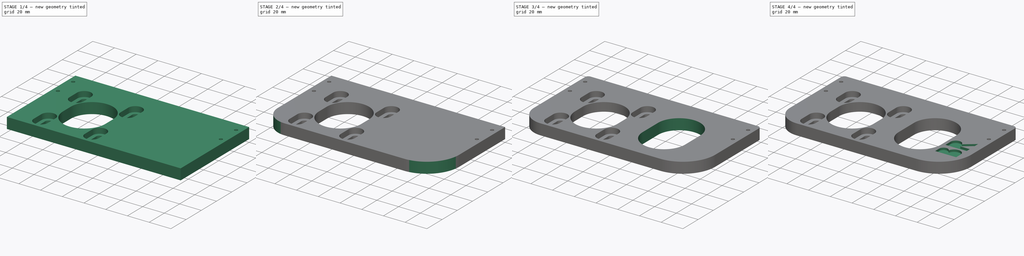
[diagram: build sequence overview — one tinted view per stage of 4, left to right]
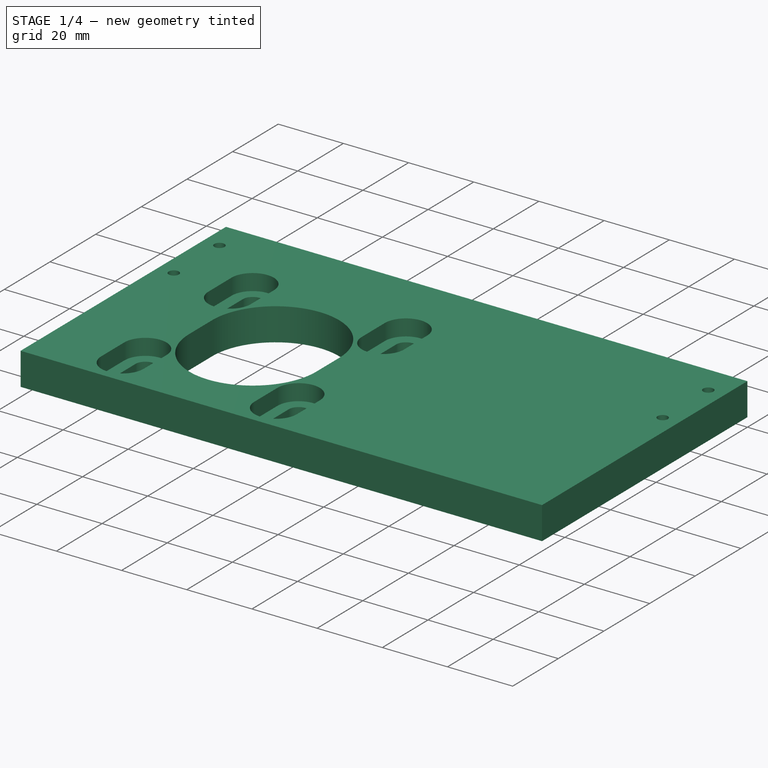
[diagram: stage 1 of 4 — iso view after this stage's code; geometry added in this stage tinted green]
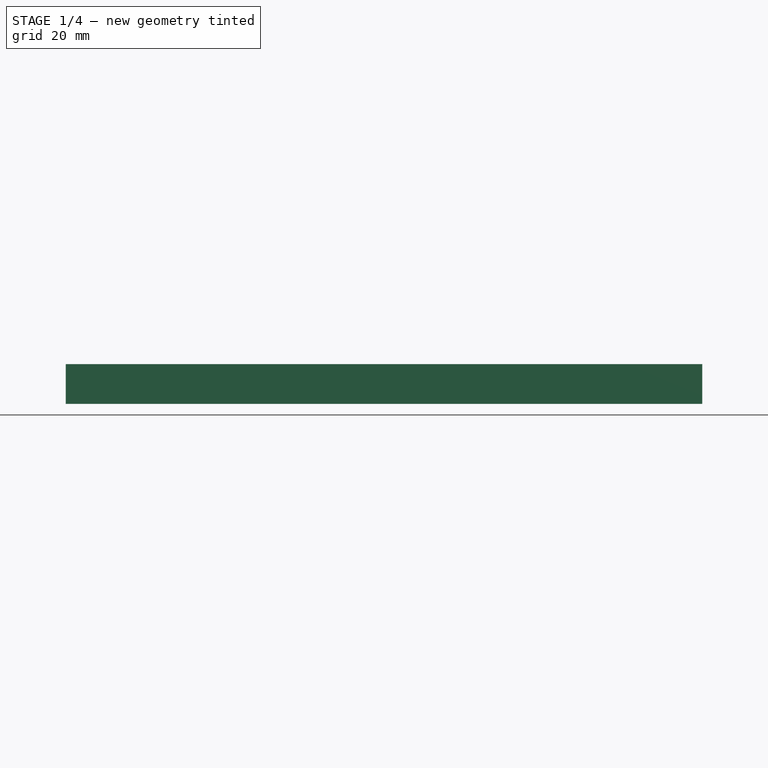
[diagram: stage 1 of 4 — front view after this stage's code; geometry added in this stage tinted green]
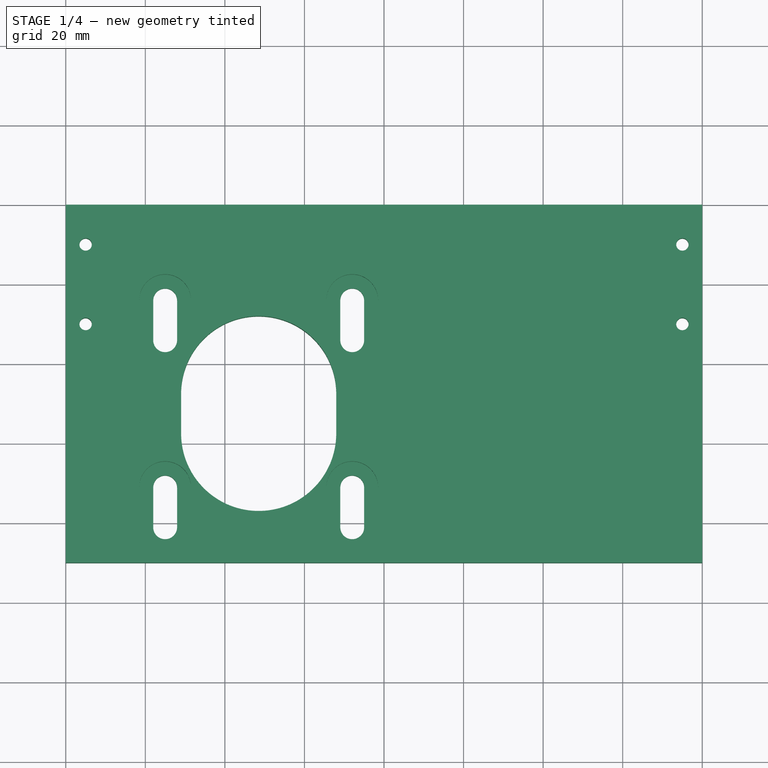
[diagram: stage 1 of 4 — top view after this stage's code; geometry added in this stage tinted green]
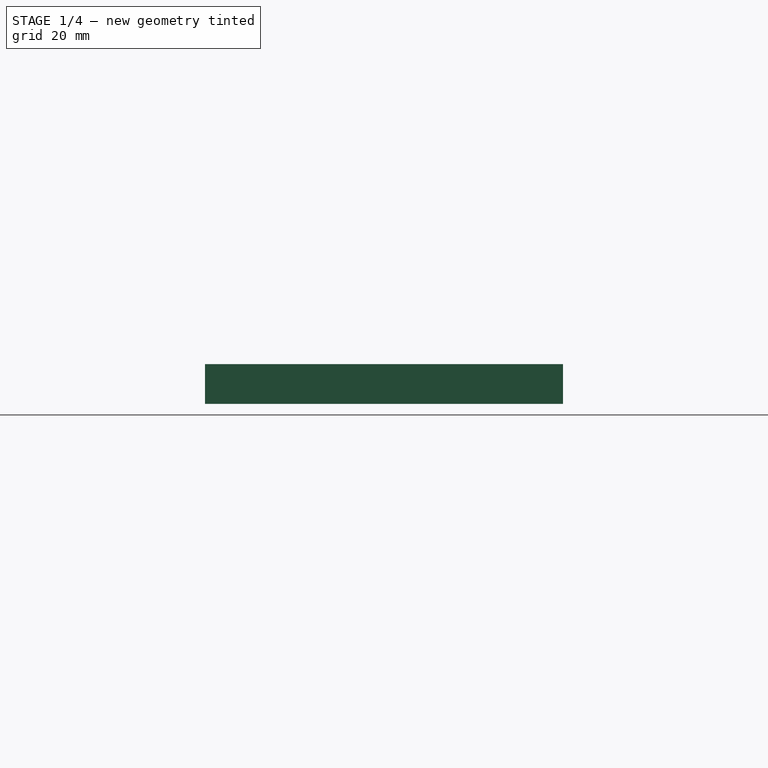
[diagram: stage 1 of 4 — right view after this stage's code; geometry added in this stage tinted green]
FCSTD DOCUMENT  (FreeCAD 0.19R24276 (Git))
Label: Stepper_holder_second_floor_v3
License: All rights reserved
LicenseURL: http://en.wikipedia.org/wiki/All_rights_reserved
objects: Sketcher::SketchObject×5, PartDesign::Pocket×4, PartDesign::Fillet×4, PartDesign::Pad×1, PartDesign::Body×1
note: 24 computed .brp shape members not serialized (recipe doc carries the construction recipe); baked Part::Feature solids carry a one-line shape summary decoded from their .brp

FEATURE [Sketcher::SketchObject] Sketch  label="Sketch_d39"
  FullyConstrained = false
  MapMode = 5
  Support = -> [XY_Plane]
  sketch-geometry (101):
    g0: LineSegment StartX=0 StartY=0 StartZ=0 EndX=200 EndY=0 EndZ=0
    g1: LineSegment StartX=200 StartY=0 StartZ=0 EndX=200 EndY=130 EndZ=0
    g2: LineSegment StartX=200 StartY=130 StartZ=0 EndX=0 EndY=130 EndZ=0
    g3: LineSegment StartX=0 StartY=130 StartZ=0 EndX=0 EndY=0 EndZ=0
    g4: Circle CenterX=100 CenterY=65 CenterZ=0 NormalX=0 NormalY=0 NormalZ=1 AngleXU=0 Radius=35
    g5: Circle CenterX=45 CenterY=115 CenterZ=0 NormalX=0 NormalY=0 NormalZ=1 AngleXU=0 Radius=1.5625
    g6: Circle CenterX=45 CenterY=15 CenterZ=0 NormalX=0 NormalY=0 NormalZ=1 AngleXU=0 Radius=1.5625
    g7: Circle CenterX=155 CenterY=115 CenterZ=0 NormalX=0 NormalY=0 NormalZ=1 AngleXU=0 Radius=1.5625
    g8: Circle CenterX=155 CenterY=15 CenterZ=0 NormalX=0 NormalY=0 NormalZ=1 AngleXU=0 Radius=1.5625
    g9: LineSegment StartX=45 StartY=15 StartZ=0 EndX=45 EndY=115 EndZ=0
    g10: LineSegment StartX=45 StartY=15 StartZ=0 EndX=155 EndY=15 EndZ=0
    g11: LineSegment StartX=155 StartY=115 StartZ=0 EndX=155 EndY=15 EndZ=0
    g12: LineSegment StartX=45 StartY=115 StartZ=0 EndX=155 EndY=115 EndZ=0
    g13: Circle CenterX=185 CenterY=30 CenterZ=0 NormalX=0 NormalY=0 NormalZ=1 AngleXU=0 Radius=1.5625
    g14: LineSegment StartX=185 StartY=105 StartZ=0 EndX=185 EndY=30 EndZ=0
    g15: Circle CenterX=99.9966 CenterY=64.9752 CenterZ=0 NormalX=0 NormalY=0 NormalZ=1 AngleXU=0 Radius=50
    g16: LineSegment StartX=100 StartY=65 StartZ=0 EndX=135.339 EndY=100.344 EndZ=0
    g17: LineSegment StartX=100 StartY=65 StartZ=0 EndX=64.6329 EndY=29.6281 EndZ=0
    g18: LineSegment StartX=100 StartY=65 StartZ=0 EndX=135.368 EndY=29.6364 EndZ=0
    g19: Circle CenterX=135.339 CenterY=100.344 CenterZ=0 NormalX=0 NormalY=0 NormalZ=1 AngleXU=0 Radius=1.5625
    g20: Circle CenterX=64.6329 CenterY=29.6281 CenterZ=0 NormalX=0 NormalY=0 NormalZ=1 AngleXU=0 Radius=1.5625
    g21: LineSegment StartX=100 StartY=65 StartZ=0 EndX=64.653 EndY=100.342 EndZ=0
    g22: Circle CenterX=64.6446 CenterY=100.355 CenterZ=0 NormalX=0 NormalY=0 NormalZ=1 AngleXU=0 Radius=1.5625
    g23: Circle CenterX=135.368 CenterY=29.6364 CenterZ=0 NormalX=0 NormalY=0 NormalZ=1 AngleXU=0 Radius=1.5625
    g24: LineSegment StartX=175 StartY=121.301 StartZ=0 EndX=175 EndY=20 EndZ=0
    g25: Circle CenterX=175 CenterY=20 CenterZ=0 NormalX=0 NormalY=0 NormalZ=1 AngleXU=0 Radius=1.5625
    g26: Circle CenterX=175 CenterY=40 CenterZ=0 NormalX=0 NormalY=0 NormalZ=1 AngleXU=0 Radius=1.5625
    g27: Circle CenterX=185 CenterY=50 CenterZ=0 NormalX=0 NormalY=0 NormalZ=1 AngleXU=0 Radius=1.5625
    g28: LineSegment StartX=100 StartY=65 StartZ=0 EndX=228.555 EndY=65 EndZ=0
    g29: Circle CenterX=175 CenterY=90 CenterZ=0 NormalX=0 NormalY=0 NormalZ=1 AngleXU=0 Radius=1.5625
    g30: Circle CenterX=175 CenterY=110 CenterZ=0 NormalX=0 NormalY=0 NormalZ=1 AngleXU=0 Radius=1.5625
    g31: Circle CenterX=185 CenterY=80 CenterZ=0 NormalX=0 NormalY=0 NormalZ=1 AngleXU=0 Radius=1.5625
    g32: Circle CenterX=185 CenterY=100 CenterZ=0 NormalX=0 NormalY=0 NormalZ=1 AngleXU=0 Radius=1.5625
    g33: LineSegment StartX=100 StartY=65 StartZ=0 EndX=100 EndY=146.994 EndZ=0
    g34: Circle CenterX=15 CenterY=30 CenterZ=0 NormalX=0 NormalY=0 NormalZ=1 AngleXU=0 Radius=1.5625
    g35: LineSegment StartX=15 StartY=105 StartZ=0 EndX=15 EndY=30 EndZ=0
    g36: LineSegment StartX=25 StartY=121.301 StartZ=0 EndX=25 EndY=20 EndZ=0
    g37: Circle CenterX=25 CenterY=20 CenterZ=0 NormalX=0 NormalY=0 NormalZ=1 AngleXU=0 Radius=1.5625
    g38: Circle CenterX=25 CenterY=40 CenterZ=0 NormalX=0 NormalY=0 NormalZ=1 AngleXU=0 Radius=1.5625
    g39: Circle CenterX=15 CenterY=50 CenterZ=0 NormalX=0 NormalY=0 NormalZ=1 AngleXU=0 Radius=1.5625
    g40: Circle CenterX=25 CenterY=90 CenterZ=0 NormalX=0 NormalY=0 NormalZ=1 AngleXU=0 Radius=1.5625
    g41: Circle CenterX=25 CenterY=110 CenterZ=0 NormalX=0 NormalY=0 NormalZ=1 AngleXU=0 Radius=1.5625
    g42: Circle CenterX=15 CenterY=80 CenterZ=0 NormalX=0 NormalY=0 NormalZ=1 AngleXU=0 Radius=1.5625
    g43: Circle CenterX=15 CenterY=100 CenterZ=0 NormalX=0 NormalY=0 NormalZ=1 AngleXU=0 Radius=1.5625
    g44: LineSegment StartX=0 StartY=0 StartZ=0 EndX=200 EndY=0 EndZ=0
    g45: LineSegment StartX=200 StartY=0 StartZ=0 EndX=200 EndY=-60 EndZ=0
    g46: LineSegment StartX=200 StartY=-60 StartZ=0 EndX=0 EndY=-60 EndZ=0
    g47: LineSegment StartX=0 StartY=-60 StartZ=0 EndX=0 EndY=0 EndZ=0
    g48: LineSegment StartX=175 StartY=20 StartZ=0 EndX=175 EndY=-60 EndZ=0
    g49: Circle CenterX=175 CenterY=-10 CenterZ=0 NormalX=0 NormalY=0 NormalZ=1 AngleXU=0 Radius=1.5625
    g50: Circle CenterX=175 CenterY=-30 CenterZ=0 NormalX=0 NormalY=0 NormalZ=1 AngleXU=0 Radius=1.5625
    g51: LineSegment StartX=185 StartY=30 StartZ=0 EndX=185 EndY=-52.453 EndZ=0
    g52: Circle CenterX=185 CenterY=-20 CenterZ=0 NormalX=0 NormalY=0 NormalZ=1 AngleXU=0 Radius=1.5625
    g53: Circle CenterX=185 CenterY=-40 CenterZ=0 NormalX=0 NormalY=0 NormalZ=1 AngleXU=0 Radius=1.5625
    g54: Circle CenterX=25 CenterY=-10 CenterZ=0 NormalX=0 NormalY=0 NormalZ=1 AngleXU=0 Radius=1.5625
    g55: Circle CenterX=25 CenterY=-30 CenterZ=0 NormalX=0 NormalY=0 NormalZ=1 AngleXU=0 Radius=1.5625
    g56: Circle CenterX=15 CenterY=-20 CenterZ=0 NormalX=0 NormalY=0 NormalZ=1 AngleXU=0 Radius=1.5625
    g57: Circle CenterX=15 CenterY=-40 CenterZ=0 NormalX=0 NormalY=0 NormalZ=1 AngleXU=0 Radius=1.5625
    g58: LineSegment StartX=44.9887 StartY=-23.9887 StartZ=0 EndX=44.9887 EndY=-71.0113 EndZ=0
    g59: LineSegment StartX=44.9887 StartY=-71.0113 StartZ=0 EndX=92.0113 EndY=-71.0113 EndZ=0
    g60: LineSegment StartX=92.0113 StartY=-71.0113 StartZ=0 EndX=92.0113 EndY=-23.9887 EndZ=0
    g61: LineSegment StartX=92.0113 StartY=-23.9887 StartZ=0 EndX=44.9887 EndY=-23.9887 EndZ=0
    g62: Circle CenterX=68.5 CenterY=-47.5 CenterZ=0 NormalX=0 NormalY=0 NormalZ=1 AngleXU=0 Radius=33.25
    g63: Circle CenterX=92.0113 CenterY=-71.0113 CenterZ=0 NormalX=0 NormalY=0 NormalZ=1 AngleXU=0 Radius=3
    g64: LineSegment StartX=160 StartY=0 StartZ=0 EndX=160 EndY=130 EndZ=0
    g65: LineSegment StartX=0 StartY=0 StartZ=0 EndX=200 EndY=0 EndZ=0
    g66: LineSegment StartX=0 StartY=0 StartZ=0 EndX=200 EndY=0 EndZ=0
    g67: LineSegment StartX=200 StartY=0 StartZ=0 EndX=200 EndY=-90 EndZ=0
    g68: LineSegment StartX=180 StartY=-90 StartZ=0 EndX=20 EndY=-90 EndZ=0
    g69: LineSegment StartX=0 StartY=-90 StartZ=0 EndX=0 EndY=0 EndZ=0
    g70: LineSegment StartX=40 StartY=48.3521 StartZ=0 EndX=40 EndY=-60 EndZ=0
    g71: ArcOfCircle CenterX=92.0113 CenterY=-23.9887 CenterZ=0 NormalX=0 NormalY=0 NormalZ=1 AngleXU=0 Radius=3 StartAngle=2e-16 EndAngle=3.14159
    g72: ArcOfCircle CenterX=92.0113 CenterY=-33.9887 CenterZ=0 NormalX=0 NormalY=0 NormalZ=1 AngleXU=0 Radius=3 StartAngle=3.14159 EndAngle=6.28319
    g73: LineSegment StartX=89.0113 StartY=-23.9887 StartZ=0 EndX=89.0113 EndY=-33.9887 EndZ=0
    g74: LineSegment StartX=95.0113 StartY=-23.9887 StartZ=0 EndX=95.0113 EndY=-33.9887 EndZ=0
    g75: ArcOfCircle CenterX=68.5 CenterY=-47.5 CenterZ=0 NormalX=0 NormalY=0 NormalZ=1 AngleXU=0 Radius=19.5 StartAngle=3e-16 EndAngle=3.14159
    g76: ArcOfCircle CenterX=68.5 CenterY=-57.5 CenterZ=0 NormalX=0 NormalY=0 NormalZ=1 AngleXU=0 Radius=19.5 StartAngle=3.14159 EndAngle=6.28319
    g77: LineSegment StartX=49 StartY=-47.5 StartZ=0 EndX=49 EndY=-57.5 EndZ=0
    g78: LineSegment StartX=88 StartY=-47.5 StartZ=0 EndX=88 EndY=-57.5 EndZ=0
    g79: ArcOfCircle CenterX=92.0113 CenterY=-71.0113 CenterZ=0 NormalX=0 NormalY=0 NormalZ=1 AngleXU=0 Radius=3 StartAngle=-9e-16 EndAngle=3.14159
    g80: ArcOfCircle CenterX=92.0113 CenterY=-81.0113 CenterZ=0 NormalX=0 NormalY=0 NormalZ=1 AngleXU=0 Radius=3 StartAngle=3.14159 EndAngle=6.28319
    g81: LineSegment StartX=89.0113 StartY=-71.0113 StartZ=0 EndX=89.0113 EndY=-81.0113 EndZ=0
    g82: LineSegment StartX=95.0113 StartY=-71.0113 StartZ=0 EndX=95.0113 EndY=-81.0113 EndZ=0
    g83: ArcOfCircle CenterX=44.9887 CenterY=-71.0113 CenterZ=0 NormalX=0 NormalY=0 NormalZ=1 AngleXU=0 Radius=3 StartAngle=-9e-16 EndAngle=3.14159
    g84: ArcOfCircle CenterX=44.9887 CenterY=-81.0113 CenterZ=0 NormalX=0 NormalY=0 NormalZ=1 AngleXU=0 Radius=3 StartAngle=3.14159 EndAngle=6.28319
    g85: LineSegment StartX=41.9887 StartY=-71.0113 StartZ=0 EndX=41.9887 EndY=-81.0113 EndZ=0
    g86: LineSegment StartX=47.9887 StartY=-71.0113 StartZ=0 EndX=47.9887 EndY=-81.0113 EndZ=0
    g87: ArcOfCircle CenterX=44.9887 CenterY=-23.9887 CenterZ=0 NormalX=0 NormalY=0 NormalZ=1 AngleXU=0 Radius=3 StartAngle=0 EndAngle=3.14159
    g88: ArcOfCircle CenterX=44.9887 CenterY=-33.9887 CenterZ=0 NormalX=0 NormalY=0 NormalZ=1 AngleXU=0 Radius=3 StartAngle=3.14159 EndAngle=6.28319
    g89: LineSegment StartX=41.9887 StartY=-23.9887 StartZ=0 EndX=41.9887 EndY=-33.9887 EndZ=0
    g90: LineSegment StartX=47.9887 StartY=-23.9887 StartZ=0 EndX=47.9887 EndY=-33.9887 EndZ=0
    g91: LineSegment StartX=20 StartY=0 StartZ=0 EndX=20 EndY=-90 EndZ=0
    g92: LineSegment StartX=180 StartY=0 StartZ=0 EndX=180 EndY=-90 EndZ=0
    g93: LineSegment StartX=20 StartY=0 StartZ=0 EndX=180 EndY=0 EndZ=0
    g94: LineSegment StartX=180 StartY=-90 StartZ=0 EndX=200 EndY=-90 EndZ=0
    g95: LineSegment StartX=20 StartY=-90 StartZ=0 EndX=0 EndY=-90 EndZ=0
    g96: LineSegment StartX=97 StartY=-19 StartZ=0 EndX=40 EndY=-19 EndZ=0
    g97: LineSegment StartX=40 StartY=-19 StartZ=0 EndX=40 EndY=-76 EndZ=0
    g98: LineSegment StartX=40 StartY=-76 StartZ=0 EndX=97 EndY=-76 EndZ=0
    g99: LineSegment StartX=97 StartY=-76 StartZ=0 EndX=97 EndY=-19 EndZ=0
    g100: Circle CenterX=68.5 CenterY=-47.5 CenterZ=0 NormalX=0 NormalY=0 NormalZ=1 AngleXU=0 Radius=40.3051
  constraints (230):
    c: Coincident(g0,g1)
    c: Coincident(g1,g2)
    c: Coincident(g2,g3)
    c: Coincident(g3,g0)
    c: Horizontal(g0)
    c: Horizontal(g2)
    c: Vertical(g1)
    c: Vertical(g3)
    c: Coincident(g0,g-1)
    c: DistanceY(g1,g1) = 130
    c: DistanceX(g0,g0) = 200
    c: Symmetric(g2,g0,g4)
    c: Diameter(g4) = 70
    c: DistanceX(g0,g6) = 45
    c: Coincident(g9,g6)
    c: Coincident(g9,g5)
    c: Vertical(g9)
    c: Coincident(g10,g6)
    c: Coincident(g10,g8)
    c: Horizontal(g10)
    c: Coincident(g11,g7)
    c: Coincident(g11,g8)
    c: Vertical(g11)
    c: Coincident(g12,g5)
    c: Coincident(g12,g7)
    c: Horizontal(g12)
    c: Symmetric(g7,g6,g4)
    c: DistanceY(g0,g6) = 15
    c: Coincident(g14,g13)
    c: Vertical(g14)
    c: Equal(g5,g6)
    c: Equal(g5,g8)
    c: Equal(g5,g7)
    c: DistanceX(g13,g0) = 15
    c: Diameter(g15) = 100
    c: Coincident(g16,g4)
    c: Coincident(g17,g4)
    c: Coincident(g18,g4)
    c: Parallel(g17,g16)
    c: Angle(g17,g18) = 1.5708
    c: PointOnObject(g18,g15)
    c: PointOnObject(g17,g15)
    c: PointOnObject(g16,g15)
    c: Coincident(g19,g16)
    c: Coincident(g20,g17)
    c: Coincident(g21,g4)
    c: Parallel(g18,g21)
    c: PointOnObject(g21,g15)
    c: Coincident(g23,g18)
    c: Diameter(g23) = 3.125
    c: Equal(g23,g19)
    c: Equal(g23,g22)
    c: Equal(g23,g20)
    c: Vertical(g24)
    c: DistanceX(g24,g0) = 25
    c: DistanceY(g0,g13) = 30
    c: Coincident(g25,g24)
    c: Equal(g13,g25)
    c: DistanceY(g0,g24) = 20
    c: PointOnObject(g26,g24)
    c: Equal(g25,g26)
    c: DistanceY(g24,g26) = 20
    c: PointOnObject(g27,g14)
    c: Equal(g26,g27)
    c: DistanceY(g13,g27) = 20
    c: Coincident(g28,g4)
    c: Horizontal(g28)
    c: Equal(g32,g30)
    c: Equal(g30,g29)
    c: Equal(g29,g31)
    c: Coincident(g33,g4)
    c: Vertical(g33)
    c: Coincident(g35,g34)
    c: Vertical(g35)
    c: Vertical(g36)
    c: Coincident(g37,g36)
    c: Equal(g34,g37)
    c: PointOnObject(g38,g36)
    c: Equal(g37,g38)
    c: PointOnObject(g39,g35)
    c: Equal(g38,g39)
    c: Equal(g43,g41)
    c: Equal(g41,g40)
    c: Equal(g40,g42)
    c: Diameter(g25) = 3.125
    c: Equal(g31,g27)
    c: Equal(g41,g30)
    c: Equal(g40,g38)
    c: Equal(g41,g5)
    c: Coincident(g44,g45)
    c: Coincident(g45,g46)
    c: Coincident(g46,g47)
    c: Coincident(g47,g44)
    c: Horizontal(g44)
    c: Horizontal(g46)
    c: Vertical(g45)
    c: Vertical(g47)
    c: Coincident(g44,g0)
    c: Coincident(g48,g25)
    c: Vertical(g48)
    c: PointOnObject(g49,g48)
    c: DistanceY(g49,g25) = 30
    c: PointOnObject(g50,g48)
    c: DistanceY(g50,g49) = 20
    c: Coincident(g51,g13)
    c: Vertical(g51)
    c: PointOnObject(g52,g51)
    c: PointOnObject(g53,g51)
    c: DistanceY(g53,g27) = 90
    c: DistanceY(g53,g52) = 20
    c: Equal(g49,g50)
    c: Equal(g50,g52)
    c: Equal(g52,g53)
    c: Equal(g53,g25)
    c: DistanceY(g45,g53) = 20
    c: Equal(g54,g55)
    c: Equal(g55,g56)
    c: Equal(g56,g57)
    c: Coincident(g58,g59)
    c: Coincident(g59,g60)
    c: Coincident(g60,g61)
    c: Coincident(g61,g58)
    c: Equal(g58,g59)
    c: Equal(g58,g60)
    c: Equal(g58,g61)
    c: PointOnObject(g58,g62)
    c: PointOnObject(g59,g62)
    c: PointOnObject(g60,g62)
    c: PointOnObject(g61,g62)
    c: Diameter(g62) = 66.5
    c: Parallel(g61,g46)
    c: Coincident(g63,g59)
    c: PointOnObject(g64,g0)
    c: PointOnObject(g64,g2)
    c: Vertical(g64)
    c: DistanceX(g64,g1) = 40
    c: Horizontal(g65)
    c: PointOnObject(g65,g45)
    c: PointOnObject(g65,g47)
    c: Coincident(g66,g67)
    c: Coincident(g69,g66)
    c: Horizontal(g66)
    c: Horizontal(g68)
    c: Vertical(g67)
    c: Vertical(g69)
    c: Coincident(g66,g65)
    c: DistanceX(g69,g67) = 200
    c: DistanceY(g67,g45) = 30
    c: PointOnObject(g70,g46)
    c: Vertical(g70)
    c: DistanceX(g-1,g70) = 40
    c: Tangent(g71,g74) = 1.5708
    c: Tangent(g71,g73) = -1.5708
    c: Tangent(g73,g72) = -1.5708
    c: Tangent(g74,g72) = 1.5708
    c: Vertical(g73)
    c: Equal(g71,g72)
    c: Coincident(g71,g60)
    c: Diameter(g71) = 6
    c: DistanceY(g72,g71) = 10
    c: Tangent(g75,g78) = 1.5708
    c: Tangent(g75,g77) = -1.5708
    c: Tangent(g77,g76) = -1.5708
    c: Tangent(g78,g76) = 1.5708
    c: Vertical(g77)
    c: Equal(g75,g76)
    c: Coincident(g75,g62)
    c: Diameter(g76) = 39
    c: DistanceY(g76,g75) = 10
    c: Tangent(g79,g82) = 1.5708
    c: Tangent(g79,g81) = -1.5708
    c: Tangent(g81,g80) = -1.5708
    c: Tangent(g82,g80) = 1.5708
    c: Vertical(g81)
    c: Equal(g79,g80)
    c: Coincident(g79,g59)
    c: Diameter(g79) = 6
    c: DistanceY(g80,g79) = 10
    c: Tangent(g83,g86) = 1.5708
    c: Tangent(g83,g85) = -1.5708
    c: Tangent(g85,g84) = -1.5708
    c: Tangent(g86,g84) = 1.5708
    c: Vertical(g85)
    c: Equal(g83,g84)
    c: Coincident(g83,g58)
    c: Diameter(g83) = 6
    c: DistanceY(g84,g83) = 10
    c: Tangent(g87,g90) = 1.5708
    c: Tangent(g87,g89) = -1.5708
    c: Tangent(g89,g88) = -1.5708
    c: Tangent(g90,g88) = 1.5708
    c: Vertical(g89)
    c: Equal(g87,g88)
    c: Coincident(g87,g58)
    c: DistanceY(g88,g87) = 10
    c: Diameter(g88) = 6
    c: DistanceY(g66,g-1) = 0
    c: DistanceX(g70,g75) = 28.5
    c: Vertical(g91)
    c: Vertical(g92)
    c: Coincident(g93,g91)
    c: Coincident(g93,g92)
    c: Horizontal(g93)
    c: DistanceX(g69,g91) = 20
    c: DistanceX(g92,g67) = 20
    c: PointOnObject(g48,g46)
    c: Coincident(g68,g92)
    c: Coincident(g94,g68)
    c: Coincident(g94,g67)
    c: Horizontal(g94)
    c: DistanceY(g69,g91) = 0
    c: Coincident(g68,g91)
    c: Coincident(g95,g68)
    c: Coincident(g95,g69)
    c: Horizontal(g95)
    c: Coincident(g96,g97)
    c: Coincident(g97,g98)
    c: Coincident(g98,g99)
    c: Coincident(g99,g96)
    c: Equal(g96,g97)
    c: Equal(g96,g98)
    c: Equal(g96,g99)
    c: PointOnObject(g96,g100)
    c: PointOnObject(g97,g100)
    c: PointOnObject(g98,g100)
    c: PointOnObject(g99,g100)
    c: Coincident(g100,g75)
    c: DistanceY(g98,g96) = 57
    c: Horizontal(g96)
    c: DistanceY(g96,g-1) = 19
FEATURE [PartDesign::Pad] Pad  label="Pad_h10"
  Direction = (1,1,1)
  Length = 10
  Length2 = 100
  Profile = -> Sketch
  Type = 0
FEATURE [Sketcher::SketchObject] Sketch001  label="Sketch001_4_paz_d13"
  FullyConstrained = true
  MapMode = 5
  Placement = pos=(0,0,10) rot=(0,0,1;0rad)
  Support = -> [Pad]
  sketch-geometry (29):
    g0: LineSegment StartX=20 StartY=0 StartZ=0 EndX=180 EndY=0 EndZ=0
    g1: LineSegment StartX=180 StartY=0 StartZ=0 EndX=180 EndY=-90 EndZ=0
    g2: LineSegment StartX=180 StartY=-90 StartZ=0 EndX=20 EndY=-90 EndZ=0
    g3: LineSegment StartX=20 StartY=-90 StartZ=0 EndX=20 EndY=0 EndZ=0
    g4: LineSegment StartX=92.0113 StartY=-23.9887 StartZ=0 EndX=44.9887 EndY=-23.9887 EndZ=0
    g5: LineSegment StartX=44.9887 StartY=-23.9887 StartZ=0 EndX=44.9887 EndY=-71.0113 EndZ=0
    g6: LineSegment StartX=44.9887 StartY=-71.0113 StartZ=0 EndX=92.0113 EndY=-71.0113 EndZ=0
    g7: LineSegment StartX=92.0113 StartY=-71.0113 StartZ=0 EndX=92.0113 EndY=-23.9887 EndZ=0
    g8: Circle CenterX=68.5 CenterY=-47.5 CenterZ=0 NormalX=0 NormalY=0 NormalZ=1 AngleXU=0 Radius=33.25
    g9: ArcOfCircle CenterX=92.0113 CenterY=-23.9887 CenterZ=0 NormalX=0 NormalY=0 NormalZ=1 AngleXU=0 Radius=6.5 StartAngle=2e-16 EndAngle=3.14159
    g10: ArcOfCircle CenterX=92.0113 CenterY=-33.9887 CenterZ=0 NormalX=0 NormalY=0 NormalZ=1 AngleXU=0 Radius=6.5 StartAngle=3.14159 EndAngle=6.28319
    g11: LineSegment StartX=85.5113 StartY=-23.9887 StartZ=0 EndX=85.5113 EndY=-33.9887 EndZ=0
    g12: LineSegment StartX=98.5113 StartY=-23.9887 StartZ=0 EndX=98.5113 EndY=-33.9887 EndZ=0
    g13: ArcOfCircle CenterX=44.9887 CenterY=-23.9887 CenterZ=0 NormalX=0 NormalY=0 NormalZ=1 AngleXU=0 Radius=6.5 StartAngle=0 EndAngle=3.14159
    g14: ArcOfCircle CenterX=44.9887 CenterY=-33.9887 CenterZ=0 NormalX=0 NormalY=0 NormalZ=1 AngleXU=0 Radius=6.5 StartAngle=3.14159 EndAngle=6.28319
    g15: LineSegment StartX=38.4887 StartY=-23.9887 StartZ=0 EndX=38.4887 EndY=-33.9887 EndZ=0
    g16: LineSegment StartX=51.4887 StartY=-23.9887 StartZ=0 EndX=51.4887 EndY=-33.9887 EndZ=0
    g17: ArcOfCircle CenterX=92.0113 CenterY=-71.0113 CenterZ=0 NormalX=0 NormalY=0 NormalZ=1 AngleXU=0 Radius=6.5 StartAngle=0 EndAngle=3.14159
    g18: ArcOfCircle CenterX=92.0113 CenterY=-81.0113 CenterZ=0 NormalX=0 NormalY=0 NormalZ=1 AngleXU=0 Radius=6.5 StartAngle=3.14159 EndAngle=6.28319
    g19: LineSegment StartX=85.5113 StartY=-71.0113 StartZ=0 EndX=85.5113 EndY=-81.0113 EndZ=0
    g20: LineSegment StartX=98.5113 StartY=-71.0113 StartZ=0 EndX=98.5113 EndY=-81.0113 EndZ=0
    g21: ArcOfCircle CenterX=44.9887 CenterY=-71.0113 CenterZ=0 NormalX=0 NormalY=0 NormalZ=1 AngleXU=0 Radius=6.5 StartAngle=0 EndAngle=3.14159
    g22: ArcOfCircle CenterX=44.9887 CenterY=-81.0113 CenterZ=0 NormalX=0 NormalY=0 NormalZ=1 AngleXU=0 Radius=6.5 StartAngle=3.14159 EndAngle=6.28319
    g23: LineSegment StartX=38.4887 StartY=-71.0113 StartZ=0 EndX=38.4887 EndY=-81.0113 EndZ=0
    g24: LineSegment StartX=51.4887 StartY=-71.0113 StartZ=0 EndX=51.4887 EndY=-81.0113 EndZ=0
    g25: ArcOfCircle CenterX=68.5 CenterY=-47.5 CenterZ=0 NormalX=0 NormalY=0 NormalZ=1 AngleXU=0 Radius=19.5 StartAngle=1e-16 EndAngle=3.14159
    g26: ArcOfCircle CenterX=68.5 CenterY=-57.5 CenterZ=0 NormalX=0 NormalY=0 NormalZ=1 AngleXU=0 Radius=19.5 StartAngle=3.14159 EndAngle=6.28319
    g27: LineSegment StartX=49 StartY=-47.5 StartZ=0 EndX=49 EndY=-57.5 EndZ=0
    g28: LineSegment StartX=88 StartY=-47.5 StartZ=0 EndX=88 EndY=-57.5 EndZ=0
  constraints (72):
    c: Coincident(g0,g1)
    c: Coincident(g1,g2)
    c: Coincident(g2,g3)
    c: Coincident(g3,g0)
    c: Horizontal(g0)
    c: Horizontal(g2)
    c: Vertical(g1)
    c: Vertical(g3)
    c: PointOnObject(g0,g-1)
    c: DistanceX(g-1,g0) = 20
    c: DistanceX(g0,g0) = 160
    c: DistanceY(g1,g1) = 90
    c: Coincident(g4,g5)
    c: Coincident(g5,g6)
    c: Coincident(g6,g7)
    c: Coincident(g7,g4)
    c: Equal(g4,g5)
    c: Equal(g4,g6)
    c: Equal(g4,g7)
    c: PointOnObject(g4,g8)
    c: PointOnObject(g5,g8)
    c: PointOnObject(g6,g8)
    c: PointOnObject(g7,g8)
    c: Diameter(g8) = 66.5
    c: Horizontal(g4)
    c: Tangent(g9,g12) = 1.5708
    c: Tangent(g9,g11) = -1.5708
    c: Tangent(g11,g10) = -1.5708
    c: Tangent(g12,g10) = 1.5708
    c: Vertical(g11)
    c: Equal(g9,g10)
    c: Coincident(g9,g4)
    c: Tangent(g13,g16) = 1.5708
    c: Tangent(g13,g15) = -1.5708
    c: Tangent(g15,g14) = -1.5708
    c: Tangent(g16,g14) = 1.5708
    c: Vertical(g15)
    c: Equal(g13,g14)
    c: Coincident(g13,g4)
    c: Tangent(g17,g20) = 1.5708
    c: Tangent(g17,g19) = -1.5708
    c: Tangent(g19,g18) = -1.5708
    c: Tangent(g20,g18) = 1.5708
    c: Vertical(g19)
    c: Equal(g17,g18)
    c: Coincident(g17,g6)
    c: Tangent(g21,g24) = 1.5708
    c: Tangent(g21,g23) = -1.5708
    c: Tangent(g23,g22) = -1.5708
    c: Tangent(g24,g22) = 1.5708
    c: Vertical(g23)
    c: Equal(g21,g22)
    c: Coincident(g21,g5)
    c: Diameter(g17) = 13
    c: Diameter(g9) = 13
    c: Diameter(g13) = 13
    c: Diameter(g21) = 13
    c: DistanceY(g18,g6) = 10
    c: DistanceY(g10,g4) = 10
    c: DistanceY(g22,g5) = 10
    c: DistanceY(g14,g4) = 10
    c: Tangent(g25,g28) = 1.5708
    c: Tangent(g25,g27) = -1.5708
    c: Tangent(g27,g26) = -1.5708
    c: Tangent(g28,g26) = 1.5708
    c: Vertical(g27)
    c: Equal(g25,g26)
    c: Diameter(g25) = 39
    c: Coincident(g25,g8)
    c: DistanceY(g8,g0) = 47.5
    c: DistanceX(g0,g8) = 48.5
    c: DistanceY(g26,g8) = 10
FEATURE [PartDesign::Pocket] Pocket  label="Pocket_h5"
  BaseFeature = -> Pad
  Length = 5
  Length2 = 100
  Profile = -> Sketch001
  Type = 0
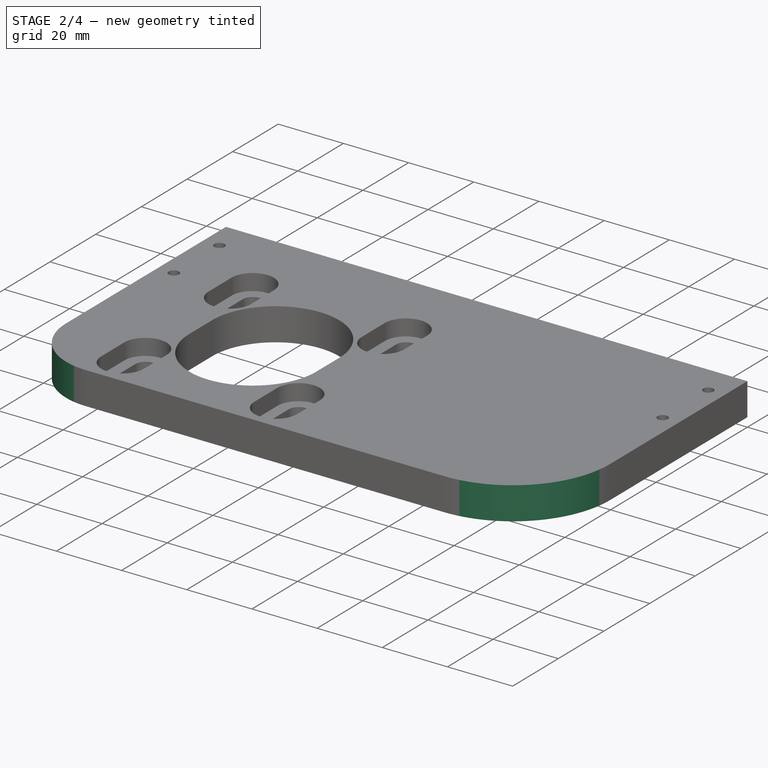
[diagram: stage 2 of 4 — iso view after this stage's code; geometry added in this stage tinted green]
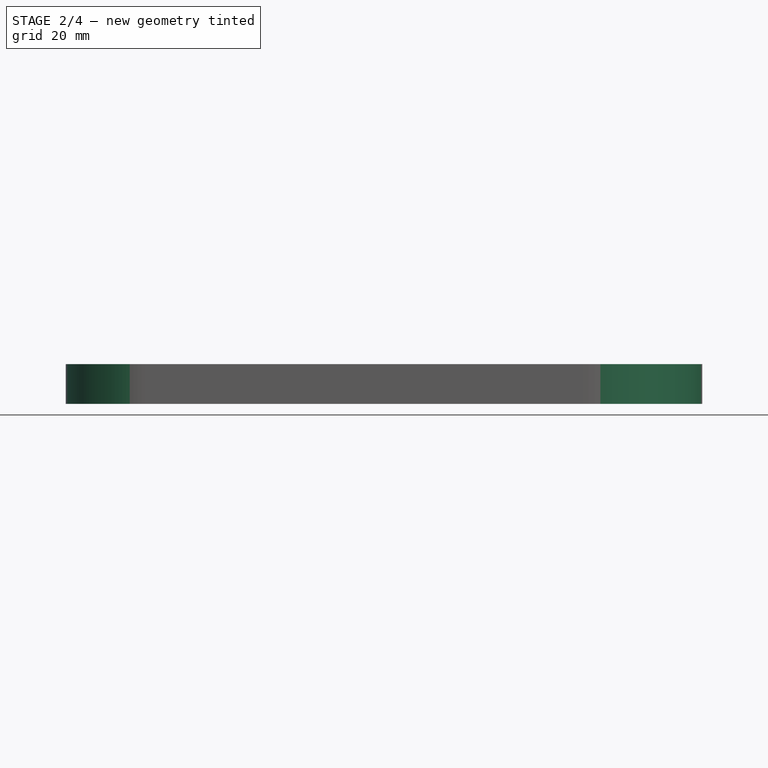
[diagram: stage 2 of 4 — front view after this stage's code; geometry added in this stage tinted green]
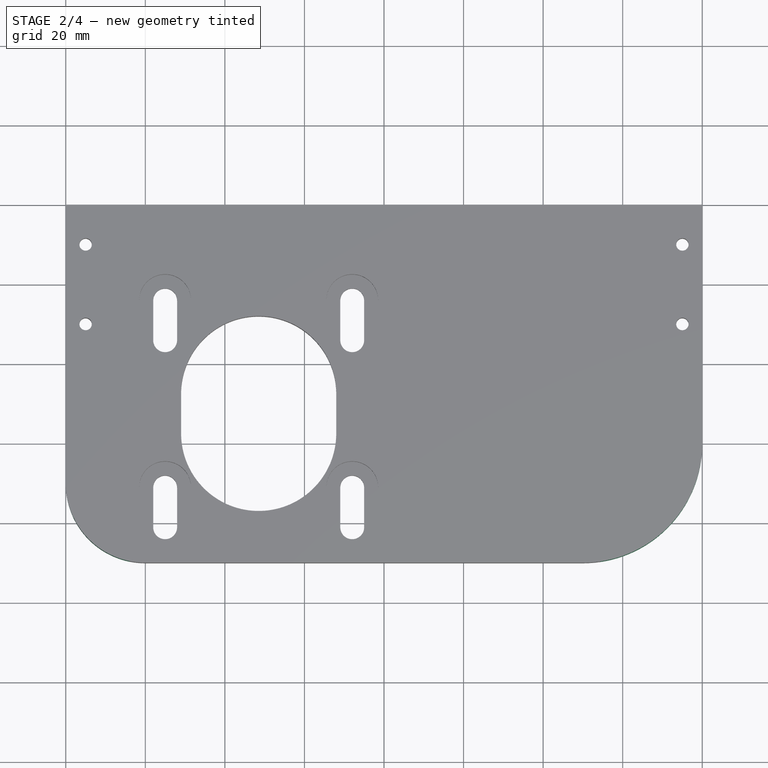
[diagram: stage 2 of 4 — top view after this stage's code; geometry added in this stage tinted green]
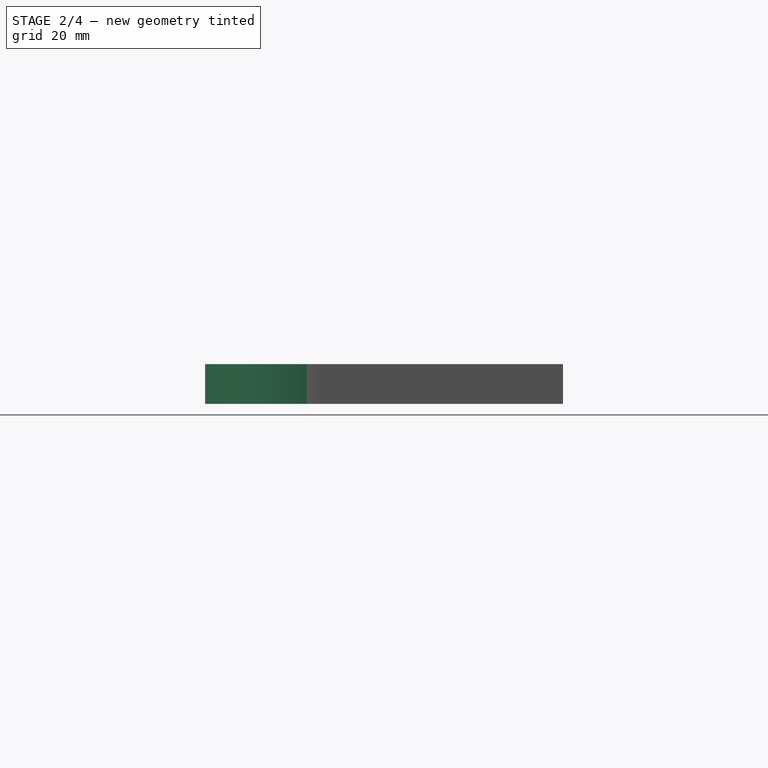
[diagram: stage 2 of 4 — right view after this stage's code; geometry added in this stage tinted green]
FEATURE [PartDesign::Fillet] Fillet
  Base = -> Pocket [Edge2]
  BaseFeature = -> Pocket
  Radius = 20
  SupportTransform = false
FEATURE [PartDesign::Fillet] Fillet001
  Base = -> Fillet [Edge3]
  BaseFeature = -> Fillet
  Radius = 30
  SupportTransform = false
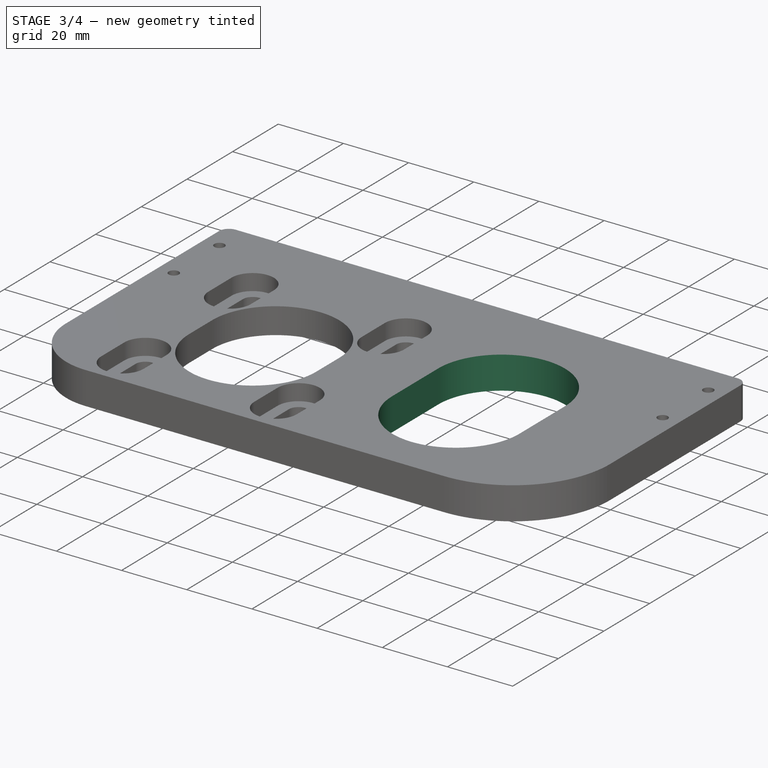
[diagram: stage 3 of 4 — iso view after this stage's code; geometry added in this stage tinted green]
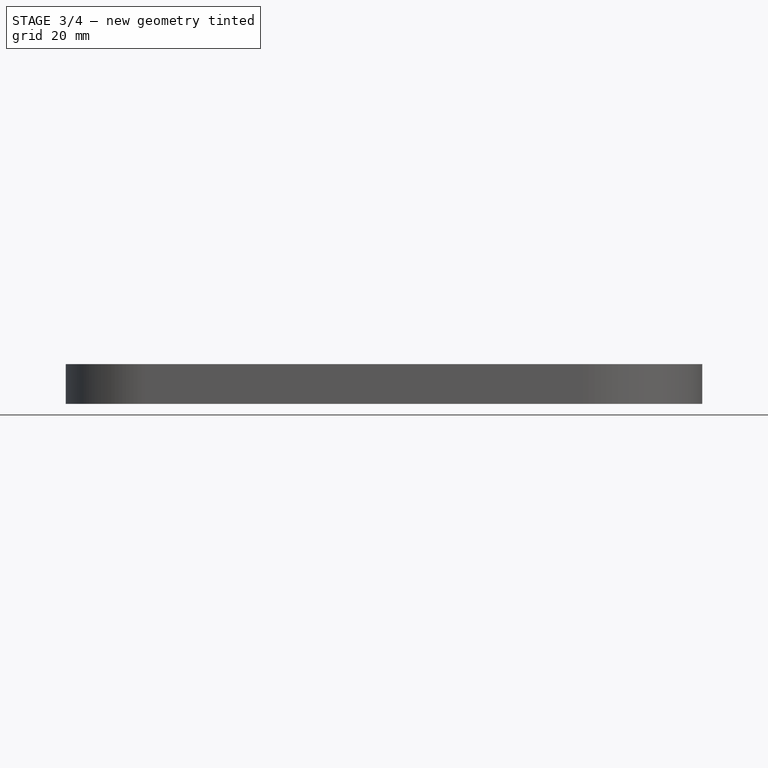
[diagram: stage 3 of 4 — front view after this stage's code; geometry added in this stage tinted green]
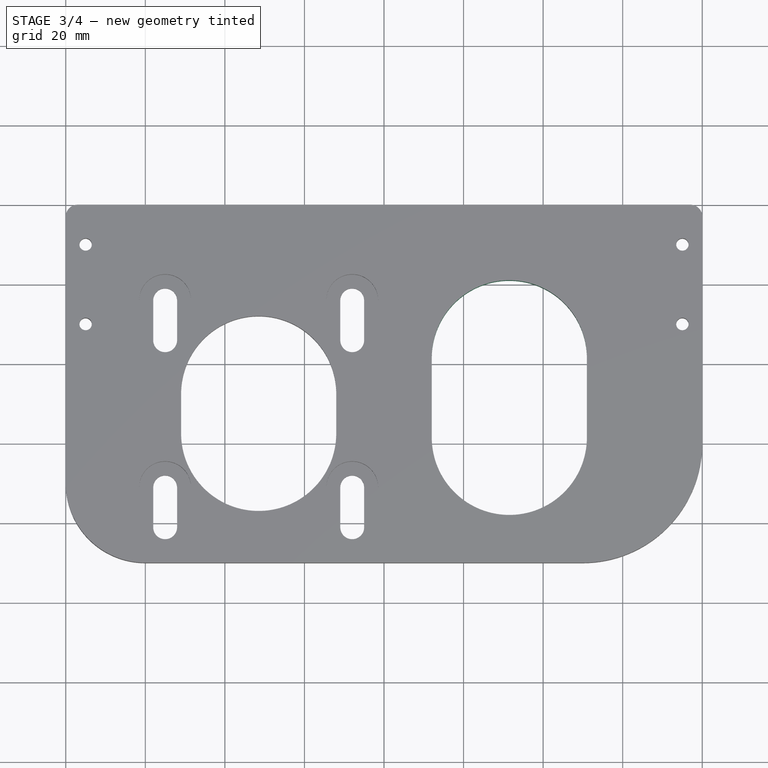
[diagram: stage 3 of 4 — top view after this stage's code; geometry added in this stage tinted green]
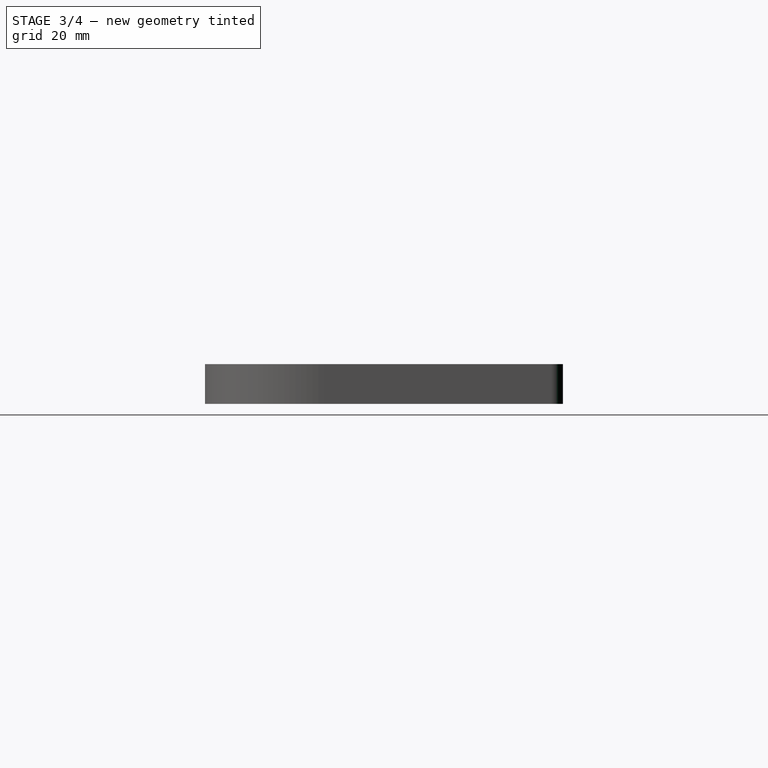
[diagram: stage 3 of 4 — right view after this stage's code; geometry added in this stage tinted green]
FEATURE [Sketcher::SketchObject] Sketch002  label="Sketch002_okno"
  FullyConstrained = true
  MapMode = 5
  Placement = pos=(0,0,10) rot=(0,0,1;0rad)
  sketch-geometry (12):
    g0: ArcOfCircle CenterX=131.5 CenterY=-38.5 CenterZ=0 NormalX=0 NormalY=0 NormalZ=1 AngleXU=0 Radius=19.5 StartAngle=1.8878e-12 EndAngle=3.14159
    g1: ArcOfCircle CenterX=131.5 CenterY=-58.5 CenterZ=0 NormalX=0 NormalY=0 NormalZ=1 AngleXU=0 Radius=19.5 StartAngle=3.14159 EndAngle=6.28319
    g2: LineSegment StartX=112 StartY=-38.5 StartZ=0 EndX=112 EndY=-58.5 EndZ=0
    g3: LineSegment StartX=151 StartY=-38.5 StartZ=0 EndX=151 EndY=-58.5 EndZ=0
    g4: LineSegment StartX=20 StartY=0 StartZ=0 EndX=180 EndY=0 EndZ=0
    g5: LineSegment StartX=180 StartY=0 StartZ=0 EndX=180 EndY=-90 EndZ=0
    g6: LineSegment StartX=180 StartY=-90 StartZ=0 EndX=20 EndY=-90 EndZ=0
    g7: LineSegment StartX=20 StartY=-90 StartZ=0 EndX=20 EndY=0 EndZ=0
    g8: LineSegment StartX=180 StartY=0 StartZ=0 EndX=160 EndY=0 EndZ=0
    g9: LineSegment StartX=160 StartY=0 StartZ=0 EndX=160 EndY=-60 EndZ=0
    g10: LineSegment StartX=160 StartY=-60 StartZ=0 EndX=180 EndY=-60 EndZ=0
    g11: LineSegment StartX=180 StartY=-60 StartZ=0 EndX=180 EndY=0 EndZ=0
  constraints (33):
    c: Tangent(g0,g3) = 1.5708
    c: Tangent(g0,g2) = -1.5708
    c: Tangent(g2,g1) = -1.5708
    c: Tangent(g3,g1) = 1.5708
    c: Vertical(g2)
    c: Equal(g0,g1)
    c: Diameter(g0) = 39
    c: DistanceY(g0,g-1) = 38.5
    c: Coincident(g4,g5)
    c: Coincident(g5,g6)
    c: Coincident(g6,g7)
    c: Coincident(g7,g4)
    c: Horizontal(g4)
    c: Horizontal(g6)
    c: Vertical(g5)
    c: Vertical(g7)
    c: PointOnObject(g4,g-1)
    c: DistanceX(g-1,g4) = 20
    c: DistanceX(g4,g4) = 160
    c: DistanceX(g0,g5) = 48.5
    c: DistanceY(g1,g0) = 20
    c: Coincident(g8,g9)
    c: Coincident(g9,g10)
    c: Coincident(g10,g11)
    c: Coincident(g11,g8)
    c: Horizontal(g8)
    c: Horizontal(g10)
    c: Vertical(g9)
    c: Vertical(g11)
    c: Coincident(g8,g4)
    c: DistanceX(g10,g10) = 20
    c: DistanceY(g10,g4) = 60
    c: DistanceY(g5,g5) = 90
FEATURE [PartDesign::Pocket] Pocket001
  BaseFeature = -> Fillet001
  Length = 5
  Length2 = 100
  Profile = -> Sketch002
  Type = 1
FEATURE [PartDesign::Fillet] Fillet002
  Base = -> Pocket001 [Edge74,Edge73]
  BaseFeature = -> Pocket001
  Radius = 3
  SupportTransform = false
FEATURE [Sketcher::SketchObject] Sketch003
  AttachmentOffset = pos=(0,0,-10) rot=(0,0,1;0rad)
  FullyConstrained = false
  MapMode = 5
  Support = -> [Fillet002]
  sketch-geometry (10):
    g0: LineSegment StartX=98 StartY=-77 StartZ=0 EndX=98 EndY=-18 EndZ=0
    g1: LineSegment StartX=98 StartY=-18 StartZ=0 EndX=39 EndY=-18 EndZ=0
    g2: LineSegment StartX=39 StartY=-18 StartZ=0 EndX=39 EndY=-77 EndZ=0
    g3: LineSegment StartX=39 StartY=-77 StartZ=0 EndX=98 EndY=-77 EndZ=0
    g4: Circle CenterX=68.5 CenterY=-47.5 CenterZ=0 NormalX=0 NormalY=0 NormalZ=1 AngleXU=0 Radius=41.7193
    g5: Circle CenterX=68.5 CenterY=-47.5 CenterZ=0 NormalX=0 NormalY=0 NormalZ=1 AngleXU=0 Radius=19.5
    g6: LineSegment StartX=39 StartY=-18 StartZ=0 EndX=98.0955 EndY=-18 EndZ=0
    g7: LineSegment StartX=98.0955 StartY=-18 StartZ=0 EndX=98.0955 EndY=-87 EndZ=0
    g8: LineSegment StartX=98.0955 StartY=-87 StartZ=0 EndX=39 EndY=-87 EndZ=0
    g9: LineSegment StartX=39 StartY=-87 StartZ=0 EndX=39 EndY=-18 EndZ=0
  constraints (27):
    c: Coincident(g0,g1)
    c: Coincident(g1,g2)
    c: Coincident(g2,g3)
    c: Coincident(g3,g0)
    c: Equal(g0,g1)
    c: Equal(g0,g2)
    c: Equal(g0,g3)
    c: PointOnObject(g0,g4)
    c: PointOnObject(g1,g4)
    c: PointOnObject(g2,g4)
    c: PointOnObject(g3,g4)
    c: Horizontal(g1)
    c: DistanceY(g0,g0) = 59
    c: DistanceX(g-1,g4) = 68.5
    c: DistanceY(g4,g-1) = 47.5
    c: Coincident(g5,g4)
    c: Diameter(g5) = 39
    c: Coincident(g6,g7)
    c: Coincident(g7,g8)
    c: Coincident(g8,g9)
    c: Coincident(g9,g6)
    c: Horizontal(g6)
    c: Horizontal(g8)
    c: Vertical(g7)
    c: Vertical(g9)
    c: Coincident(g6,g1)
    c: DistanceY(g9,g9) = 69
FEATURE [PartDesign::Pocket] Pocket002
  BaseFeature = -> Fillet002
  Length = 2
  Length2 = 100
  Profile = -> Sketch003
  Reversed = true
  Type = 0
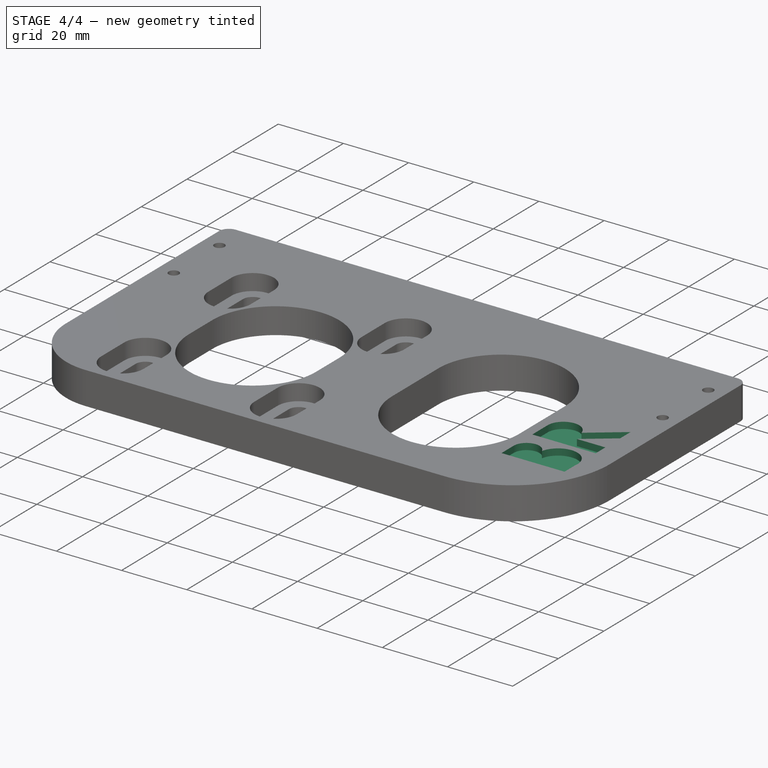
[diagram: stage 4 of 4 — iso view after this stage's code; geometry added in this stage tinted green]
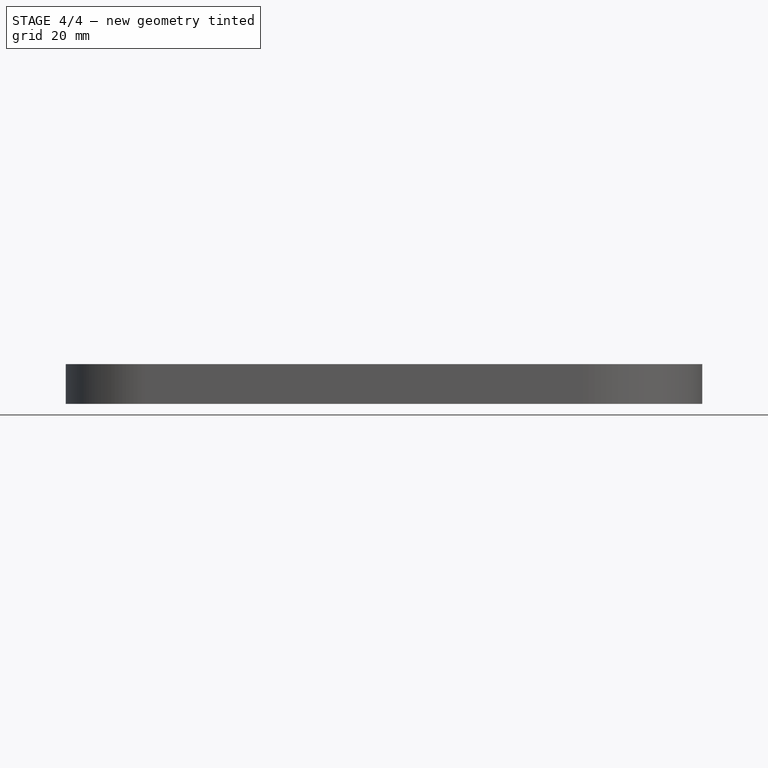
[diagram: stage 4 of 4 — front view after this stage's code; geometry added in this stage tinted green]
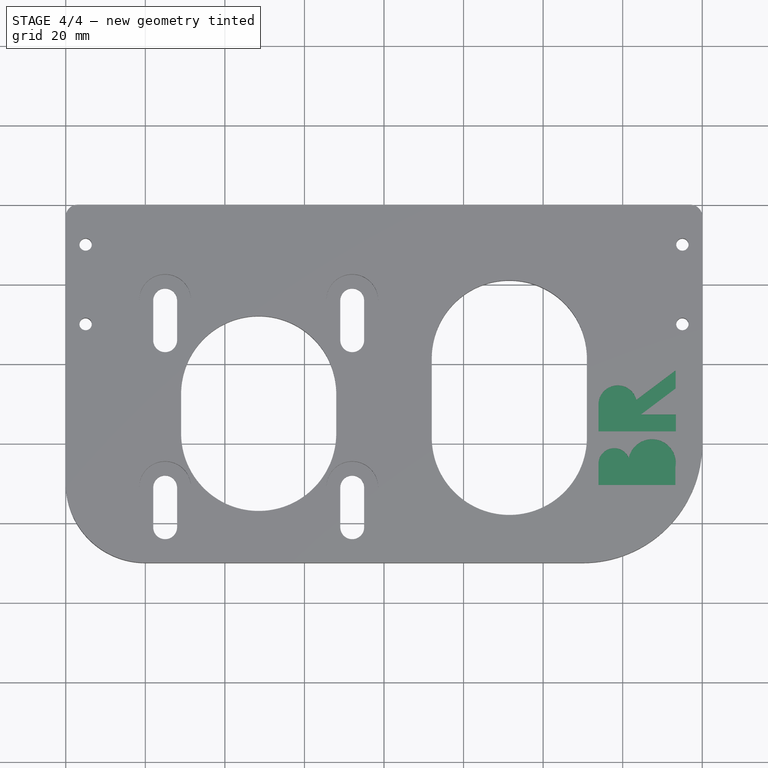
[diagram: stage 4 of 4 — top view after this stage's code; geometry added in this stage tinted green]
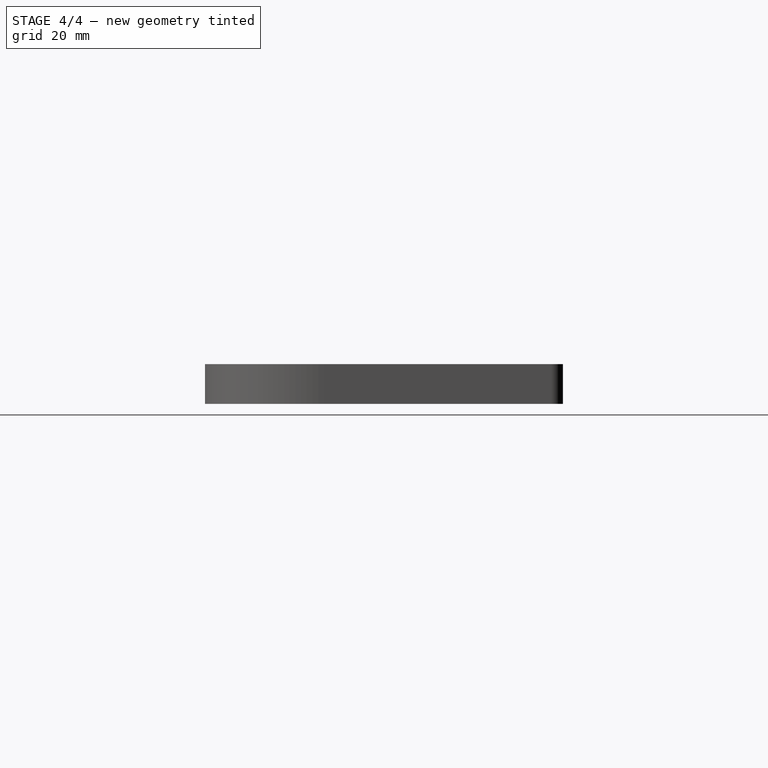
[diagram: stage 4 of 4 — right view after this stage's code; geometry added in this stage tinted green]
FEATURE [PartDesign::Fillet] Fillet003
  Base = -> Pocket002 [Edge46,Edge45,Edge50,Edge48]
  BaseFeature = -> Pocket002
  Radius = 2
  SupportTransform = false
FEATURE [Sketcher::SketchObject] Sketch004
  AttachmentOffset = pos=(37,-216,0) rot=(0,0,1;1.5708rad)
  FullyConstrained = false
  MapMode = 5
  Placement = pos=(37,-216,10) rot=(0,0,1;1.5708rad)
  Support = -> [Fillet003]
  sketch-geometry (14):
    g0: LineSegment StartX=145.517 StartY=-116.904 StartZ=0 EndX=150.633 EndY=-116.904 EndZ=0
    g1: LineSegment StartX=150.001 StartY=-136.237 StartZ=0 EndX=145.517 EndY=-136.237 EndZ=0
    g2: LineSegment StartX=145.517 StartY=-136.237 StartZ=0 EndX=145.517 EndY=-116.904 EndZ=0
    g3: LineSegment StartX=165.495 StartY=-116.904 StartZ=0 EndX=159.008 EndY=-116.904 EndZ=0
    g4: LineSegment StartX=159.008 StartY=-116.904 StartZ=0 EndX=159.008 EndY=-136.363 EndZ=0
    g5: LineSegment StartX=159.008 StartY=-136.363 StartZ=0 EndX=163.247 EndY=-136.363 EndZ=0
    g6: LineSegment StartX=163.247 StartY=-136.363 StartZ=0 EndX=163.247 EndY=-127.595 EndZ=0
    g7: ArcOfCircle CenterX=165.712 CenterY=-121.748 CenterZ=0 NormalX=0 NormalY=0 NormalZ=1 AngleXU=0 Radius=4.8491 StartAngle=4.96561 EndAngle=7.8987
    g8: LineSegment StartX=163.247 StartY=-127.595 StartZ=0 EndX=169.794 EndY=-136.299 EndZ=0
    g9: LineSegment StartX=169.794 StartY=-136.299 StartZ=0 EndX=174.341 EndY=-136.299 EndZ=0
    g10: LineSegment StartX=174.341 StartY=-136.299 StartZ=0 EndX=166.927 EndY=-126.443 EndZ=0
    g11: ArcOfCircle CenterX=151.054 CenterY=-130.362 CenterZ=0 NormalX=0 NormalY=0 NormalZ=1 AngleXU=0 Radius=5.96873 StartAngle=4.535 EndAngle=7.64048
    g12: ArcOfCircle CenterX=150.806 CenterY=-120.865 CenterZ=0 NormalX=0 NormalY=0 NormalZ=1 AngleXU=0 Radius=3.96442 StartAngle=5.10393 EndAngle=7.8976
    g13: LineSegment StartX=150.633 StartY=-116.904 StartZ=0 EndX=159.008 EndY=-116.904 EndZ=0
  constraints (25):
    c: Coincident(g1,g2)
    c: Coincident(g2,g0)
    c: Horizontal(g0)
    c: Horizontal(g1)
    c: Vertical(g2)
    c: Coincident(g3,g4)
    c: Coincident(g4,g5)
    c: Coincident(g5,g6)
    c: Horizontal(g3)
    c: Horizontal(g5)
    c: Vertical(g4)
    c: Vertical(g6)
    c: Coincident(g9,g8)
    c: Coincident(g10,g9)
    c: Coincident(g7,g10)
    c: Coincident(g6,g8)
    c: Coincident(g11,g1)
    c: Coincident(g11,g12)
    c: Coincident(g12,g0)
    c: Horizontal(g9)
    c: Coincident(g3,g7)
    c: Parallel(g8,g10)
    c: Coincident(g13,g12)
    c: Coincident(g13,g3)
    c: Horizontal(g13)
FEATURE [PartDesign::Pocket] Pocket003
  BaseFeature = -> Fillet003
  Length = 2
  Length2 = 100
  Profile = -> Sketch004
  Type = 0
FEATURE [PartDesign::Body] Body
  Group = -> [Sketch,Pad,Sketch001,Pocket,Fillet,Fillet001,Sketch002,Pocket001,Fillet002,Sketch003,Pocket002,Fillet003,Sketch004,Pocket003]
  Origin = -> Origin
  Tip = -> Pocket003
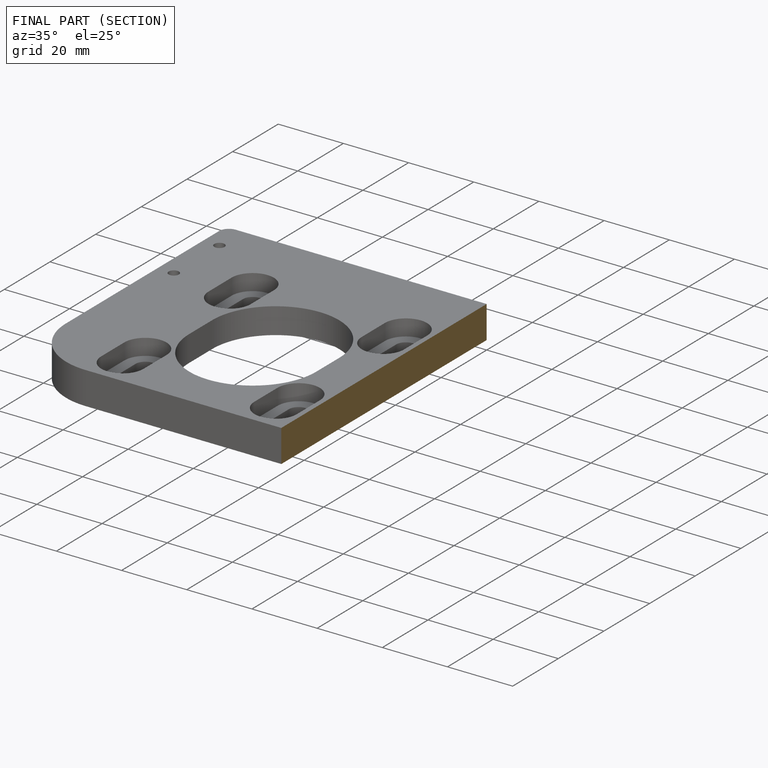
[diagram: finished part — half-section view (interior)]
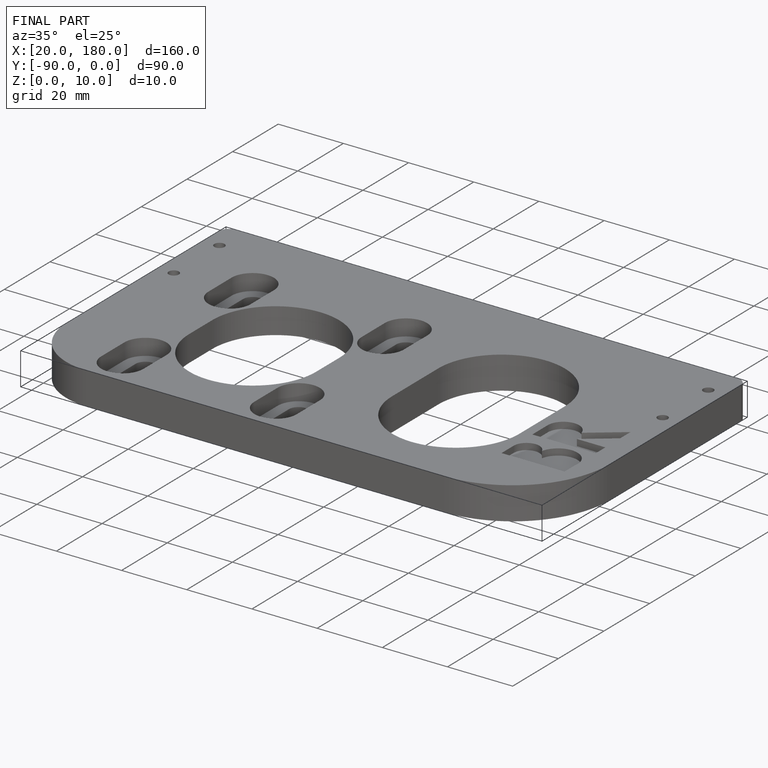
[diagram: finished part — iso view with bounding-box wireframe]
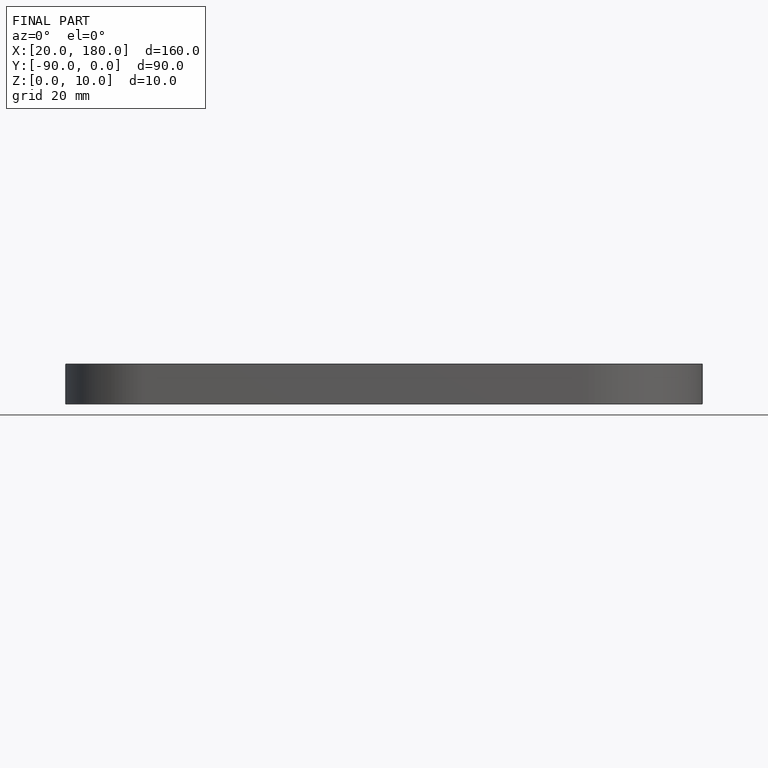
[diagram: finished part — front view with bounding-box wireframe]
